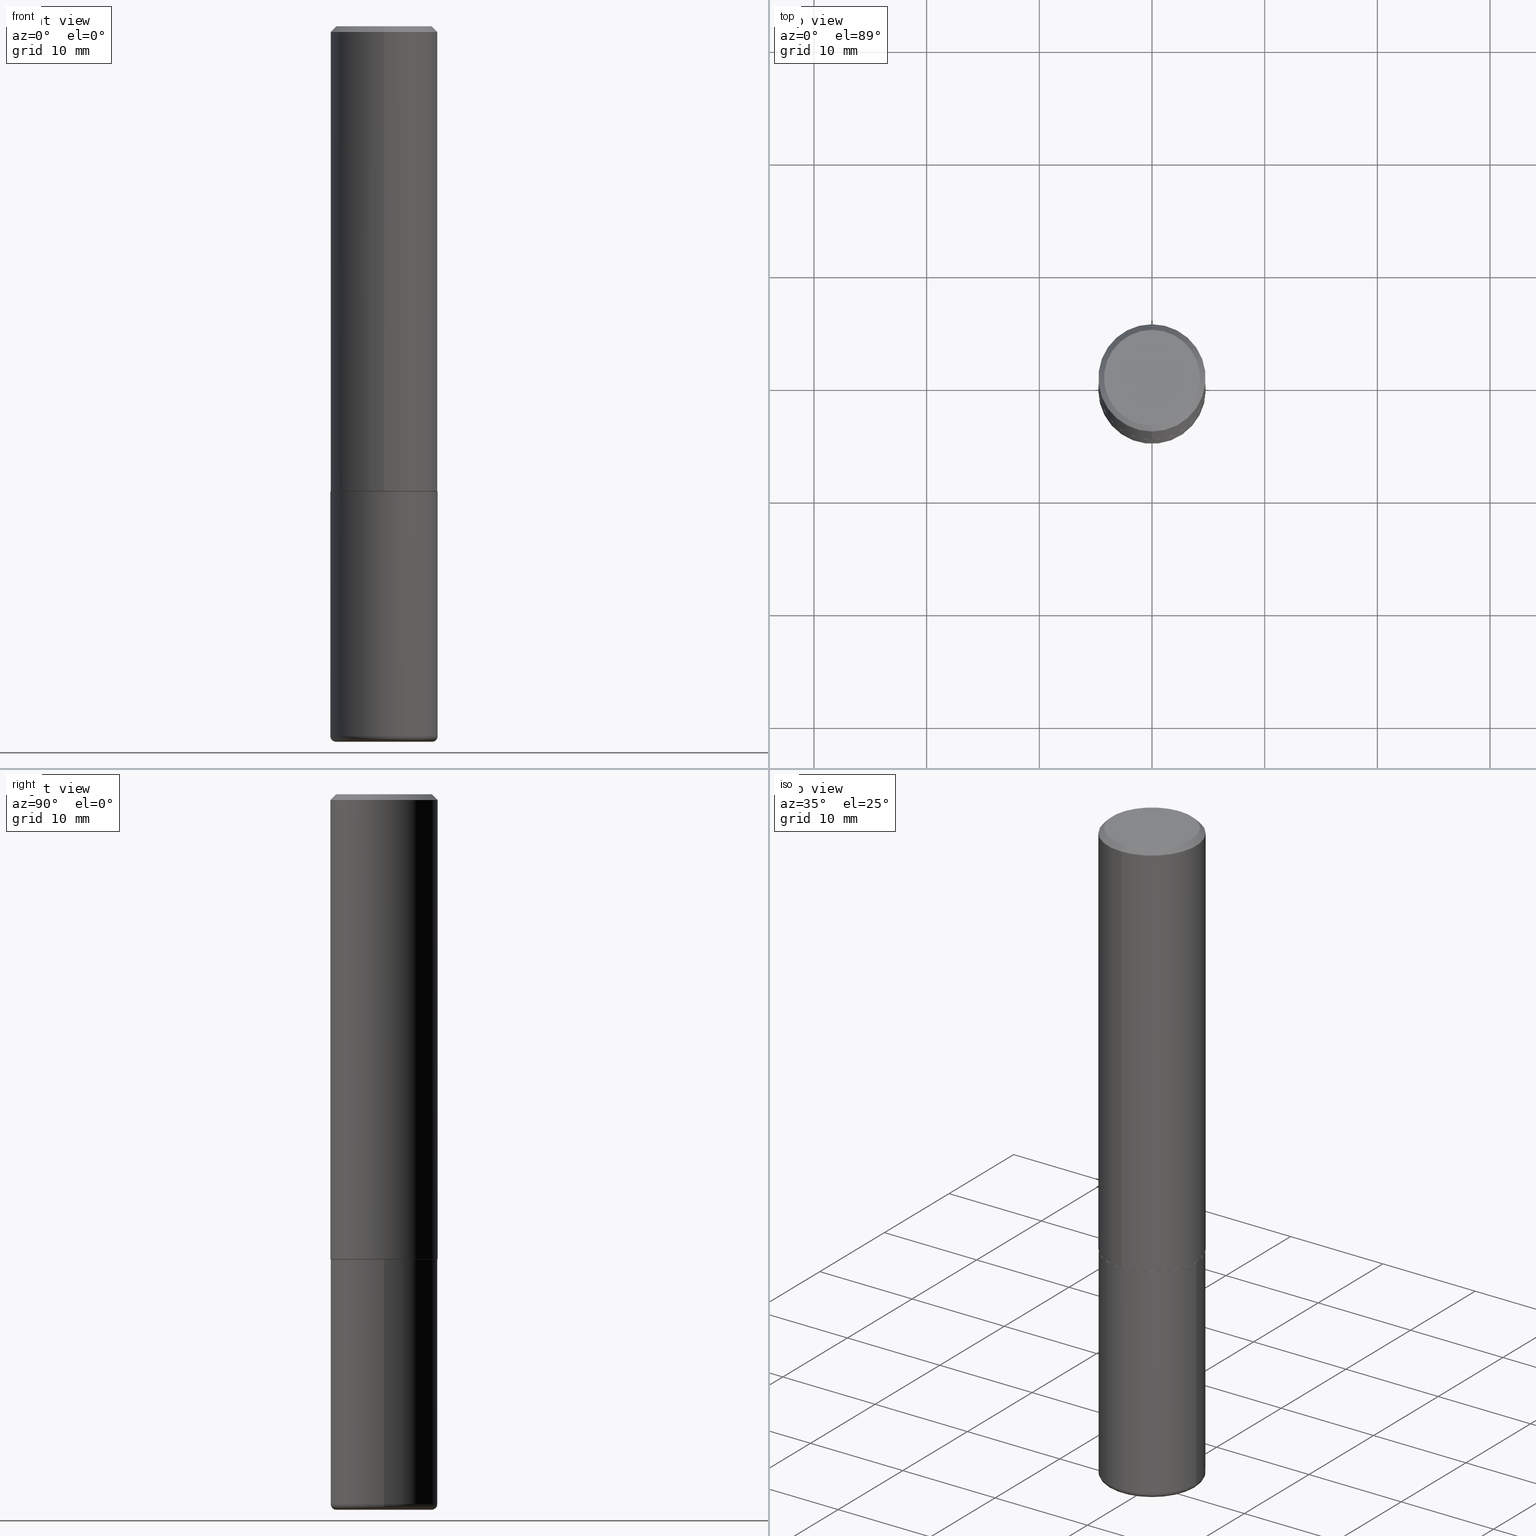
[diagram: canonical four-view strip — front | top / right | iso, engineering-drawing reading convention]
A machine part, canonical four-view strip (front | top / right | iso — engineering-drawing reading convention). The complete STEP part file that produces these views, byte-faithful:
ISO-10303-21;
HEADER;
FILE_DESCRIPTION (( 'STEP AP203' ),
    '1' );
FILE_NAME ('36572.STEP',
    '2024-03-01T16:43:53',
    ( '' ),
    ( '' ),
    'SwSTEP 2.0',
    'SolidWorks 2023',
    '' );
FILE_SCHEMA (( 'CONFIG_CONTROL_DESIGN' ));
ENDSEC;

DATA;
#1 = DIRECTION ( 'NONE',  ( 1.000000000000000000, -6.982962677686265922E-15, 4.876176775795935793E-29 ) ) ;
#2 = PERSON_AND_ORGANIZATION_ROLE ( 'creator' ) ;
#3 = CIRCLE ( 'NONE', #399, 0.01999999999999988939 ) ;
#4 = DIRECTION ( 'NONE',  ( 2.445330564750870114E-29, -3.491679308445229010E-15, -1.000000000000000000 ) ) ;
#5 = CALENDAR_DATE ( 2024, 1, 3 ) ;
#6 = CARTESIAN_POINT ( 'NONE',  ( 3.973886810050848091E-29, -5.673657175620113002E-15, -1.625000000000000222 ) ) ;
#7 = CARTESIAN_POINT ( 'NONE',  ( -0.1874999999999999722, -7.326606090780813796E-15, -2.480000000000000426 ) ) ;
#8 = DIRECTION ( 'NONE',  ( 7.105427357601001859E-15, 1.000000000000000000, -3.491481338843145583E-15 ) ) ;
#9 = ADVANCED_BREP_SHAPE_REPRESENTATION ( '36572', ( #342, #336, #187 ), #157 ) ;
#10 = CIRCLE ( 'NONE', #252, 0.1675000000000002320 ) ;
#11 = CARTESIAN_POINT ( 'NONE',  ( 3.973662167720164111E-29, -5.673978876223497387E-15, -1.625000000000000000 ) ) ;
#12 = DIRECTION ( 'NONE',  ( -2.445330564750870114E-29, 3.491679308445229010E-15, 1.000000000000000000 ) ) ;
#13 = CARTESIAN_POINT ( 'NONE',  ( 3.973662167720164111E-29, -5.673978876223497387E-15, -1.625000000000000000 ) ) ;
#14 = APPROVAL_PERSON_ORGANIZATION ( #201, #202, #291 ) ;
#15 = CARTESIAN_POINT ( 'NONE',  ( 6.113672015462842613E-29, -8.728703347107864943E-15, -2.500000000000000000 ) ) ;
#16 = CARTESIAN_POINT ( 'NONE',  ( -0.1675000000000000100, -7.432575177745255527E-15, -2.500000000000000000 ) ) ;
#17 = ORIENTED_EDGE ( 'NONE', *, *, #253, .F. ) ;
#18 = CIRCLE ( 'NONE', #207, 0.1875000000000000278 ) ;
#19 = FACE_OUTER_BOUND ( 'NONE', #254, .T. ) ;
#20 = ORIENTED_EDGE ( 'NONE', *, *, #361, .T. ) ;
#21 = EDGE_LOOP ( 'NONE', ( #20, #407 ) ) ;
#22 = DIRECTION ( 'NONE',  ( -2.445330564750870114E-29, 3.491679308445229010E-15, 1.000000000000000000 ) ) ;
#23 = ORIENTED_EDGE ( 'NONE', *, *, #68, .T. ) ;
#24 = PERSON_AND_ORGANIZATION ( #58, #381 ) ;
#25 = VECTOR ( 'NONE', #71, 39.37007874015748143 ) ;
#26 = EDGE_CURVE ( 'NONE', #363, #231, #98, .T. ) ;
#27 = AXIS2_PLACEMENT_3D ( 'NONE', #120, #118, #379 ) ;
#28 = EDGE_LOOP ( 'NONE', ( #134, #382, #155, #284 ) ) ;
#29 = PERSON_AND_ORGANIZATION_ROLE ( 'creator' ) ;
#30 = FACE_OUTER_BOUND ( 'NONE', #311, .T. ) ;
#31 = PERSON_AND_ORGANIZATION ( #58, #381 ) ;
#32 = DIRECTION ( 'NONE',  ( -4.851104656540957964E-15, -0.7071067811865491270, -0.7071067811865459074 ) ) ;
#33 = ADVANCED_FACE ( 'NONE', ( #264 ), #154, .T. ) ;
#34 = DIRECTION ( 'NONE',  ( -6.982962677686266711E-15, -1.000000000000000000, 3.483106191921935949E-15 ) ) ;
#35 = CC_DESIGN_APPROVAL ( #340, ( #107 ) ) ;
#36 = DIRECTION ( 'NONE',  ( 2.438088387897960049E-29, -3.491481338843145188E-15, -1.000000000000000000 ) ) ;
#37 = CARTESIAN_POINT ( 'NONE',  ( -0.1875000000000000278, 1.332267629550188046E-15, -9.223003294227947991E-30 ) ) ;
#38 = EDGE_CURVE ( 'NONE', #280, #49, #269, .T. ) ;
#39 = CARTESIAN_POINT ( 'NONE',  ( 6.064762639339139522E-29, -8.658873720331001644E-15, -2.480000000000000426 ) ) ;
#40 = CLOSED_SHELL ( 'NONE', ( #377, #176, #146, #60, #33, #328 ) ) ;
#41 = AXIS2_PLACEMENT_3D ( 'NONE', #15, #44, #305 ) ;
#42 = PLANE ( 'NONE',  #125 ) ;
#43 = DIRECTION ( 'NONE',  ( 2.445330564750869834E-29, -3.491679308445229010E-15, -1.000000000000000000 ) ) ;
#44 = DIRECTION ( 'NONE',  ( -2.445468806185136597E-29, 3.491481338843145583E-15, 1.000000000000000000 ) ) ;
#45 = CONICAL_SURFACE ( 'NONE', #173, 0.1864999999999999714, 0.7853981633976704346 ) ;
#46 = APPROVAL_PERSON_ORGANIZATION ( #75, #216, #296 ) ;
#47 = DIRECTION ( 'NONE',  ( 6.982962677686266711E-15, 1.000000000000000000, -3.483106191921935949E-15 ) ) ;
#48 = EDGE_CURVE ( 'NONE', #49, #363, #357, .T. ) ;
#49 = VERTEX_POINT ( 'NONE', #7 ) ;
#50 = PRODUCT_DEFINITION_SHAPE ( 'NONE', 'NONE',  #282 ) ;
#51 = DIRECTION ( 'NONE',  ( 4.937700262164541731E-15, 0.7071067811865442421, -0.7071067811865507924 ) ) ;
#52 = ORIENTED_EDGE ( 'NONE', *, *, #132, .T. ) ;
#53 = AXIS2_PLACEMENT_3D ( 'NONE', #205, #102, #34 ) ;
#54 = LOCAL_TIME ( 11, 43, 53.00000000000000000, #103 ) ;
#55 = CARTESIAN_POINT ( 'NONE',  ( 1.309305502066175205E-15, 0.1874999999999999167, -0.02000000000000069431 ) ) ;
#56 = ORIENTED_EDGE ( 'NONE', *, *, #132, .F. ) ;
#57 = LINE ( 'NONE', #287, #65 ) ;
#58 = PERSON ( 'UNSPECIFIED', 'UNSPECIFIED', 'UNSPECIFIED', ('UNSPECIFIED'), ('UNSPECIFIED'), ('UNSPECIFIED') ) ;
#59 = VERTEX_POINT ( 'NONE', #104 ) ;
#60 = ADVANCED_FACE ( 'NONE', ( #209 ), #100, .T. ) ;
#61 = CARTESIAN_POINT ( 'NONE',  ( -1.309305502066136748E-15, -0.1875000000000058842, -1.623999999999999666 ) ) ;
#62 = ORIENTED_EDGE ( 'NONE', *, *, #347, .T. ) ;
#63 = APPLICATION_CONTEXT ( 'configuration controlled 3d designs of mechanical parts and assemblies' ) ;
#64 = CC_DESIGN_PERSON_AND_ORGANIZATION_ASSIGNMENT ( #96, #138, ( #107 ) ) ;
#65 = VECTOR ( 'NONE', #153, 39.37007874015748854 ) ;
#66 = VERTEX_POINT ( 'NONE', #385 ) ;
#67 = APPLICATION_PROTOCOL_DEFINITION ( 'international standard', 'config_control_design', 1994, #63 ) ;
#68 = EDGE_CURVE ( 'NONE', #410, #175, #389, .T. ) ;
#69 = CARTESIAN_POINT ( 'NONE',  ( -0.1675000000000000100, -7.468714637932833959E-15, -2.480000000000000426 ) ) ;
#70 = COORDINATED_UNIVERSAL_TIME_OFFSET ( 5, 0, .BEHIND. ) ;
#71 = DIRECTION ( 'NONE',  ( -2.445468806185136877E-29, 3.491481338843145188E-15, 1.000000000000000000 ) ) ;
#72 = DATE_AND_TIME ( #210, #54 ) ;
#73 = AXIS2_PLACEMENT_3D ( 'NONE', #140, #239, #1 ) ;
#74 = FACE_OUTER_BOUND ( 'NONE', #341, .T. ) ;
#75 = PERSON_AND_ORGANIZATION ( #58, #381 ) ;
#76 = VERTEX_POINT ( 'NONE', #329 ) ;
#77 = ADVANCED_FACE ( 'NONE', ( #74 ), #84, .T. ) ;
#78 = CARTESIAN_POINT ( 'NONE',  ( -1.302322539388448565E-15, -0.1865000000000056335, -1.624999999999999556 ) ) ;
#79 = DIRECTION ( 'NONE',  ( 1.000000000000000000, -6.982962677686274599E-15, 0.000000000000000000 ) ) ;
#80 = CIRCLE ( 'NONE', #186, 0.1875000000000002220 ) ;
#81 = CARTESIAN_POINT ( 'NONE',  ( 0.1875000000000000278, -6.982962677686288010E-15, -1.625000000000000222 ) ) ;
#82 = CARTESIAN_POINT ( 'NONE',  ( 4.890661129501750808E-31, -6.983358616890472958E-17, -0.02000000000000004205 ) ) ;
#83 = DIRECTION ( 'NONE',  ( -6.982962677686265922E-15, -1.000000000000000000, 2.929595703661408850E-15 ) ) ;
#84 = CONICAL_SURFACE ( 'NONE', #165, 0.1874999999999999722, 0.7853981633974471688 ) ;
#85 = CARTESIAN_POINT ( 'NONE',  ( -1.217738394604447231E-15, -0.1675000000000002320, 3.458527446273026042E-16 ) ) ;
#86 = ORIENTED_EDGE ( 'NONE', *, *, #171, .T. ) ;
#87 = EDGE_CURVE ( 'NONE', #59, #231, #203, .T. ) ;
#88 = MECHANICAL_CONTEXT ( 'NONE', #316, 'mechanical' ) ;
#89 = ORIENTED_EDGE ( 'NONE', *, *, #361, .F. ) ;
#90 = LENGTH_MEASURE_WITH_UNIT ( LENGTH_MEASURE( 0.02539999999999999897 ), #224 );
#91 = ORIENTED_EDGE ( 'NONE', *, *, #99, .F. ) ;
#92 =( CONVERSION_BASED_UNIT ( 'INCH', #90 ) LENGTH_UNIT ( ) NAMED_UNIT ( #214 ) );
#93 = ORIENTED_EDGE ( 'NONE', *, *, #418, .F. ) ;
#94 = ORIENTED_EDGE ( 'NONE', *, *, #152, .T. ) ;
#95 = CC_DESIGN_PERSON_AND_ORGANIZATION_ASSIGNMENT ( #169, #130, ( #117 ) ) ;
#96 = PERSON_AND_ORGANIZATION ( #58, #381 ) ;
#97 = DIRECTION ( 'NONE',  ( -6.982962677686265922E-15, -1.000000000000000000, 2.913971193241877216E-15 ) ) ;
#98 = CIRCLE ( 'NONE', #331, 0.1875000000000000278 ) ;
#99 = EDGE_CURVE ( 'NONE', #378, #76, #80, .T. ) ;
#100 = CYLINDRICAL_SURFACE ( 'NONE', #73, 0.1875000000000000278 ) ;
#101 = CALENDAR_DATE ( 2024, 1, 3 ) ;
#102 = DIRECTION ( 'NONE',  ( -2.445330564750870114E-29, 3.491679308445229010E-15, 1.000000000000000000 ) ) ;
#103 = COORDINATED_UNIVERSAL_TIME_OFFSET ( 5, 0, .BEHIND. ) ;
#104 = CARTESIAN_POINT ( 'NONE',  ( 0.1874999999999999722, -9.968179222397176653E-15, -2.480000000000000426 ) ) ;
#105 = AXIS2_PLACEMENT_3D ( 'NONE', #250, #150, #185 ) ;
#106 = CARTESIAN_POINT ( 'NONE',  ( 3.971216837155413830E-29, -5.670487196915053013E-15, -1.624000000000000110 ) ) ;
#107 = SECURITY_CLASSIFICATION ( '', '', #392 ) ;
#108 = EDGE_CURVE ( 'NONE', #76, #378, #380, .T. ) ;
#109 = PLANE ( 'NONE',  #116 ) ;
#110 = CARTESIAN_POINT ( 'NONE',  ( -1.309305502066175797E-15, -0.1875000000000001110, 6.546898703334808091E-16 ) ) ;
#111 = DIRECTION ( 'NONE',  ( -6.982962677686266711E-15, -1.000000000000000000, 3.491679308445229010E-15 ) ) ;
#112 = CONICAL_SURFACE ( 'NONE', #344, 0.1874999999999999722, 0.7853981633974471688 ) ;
#113 = DIRECTION ( 'NONE',  ( -2.445330564750870114E-29, 3.491679308445229010E-15, 1.000000000000000000 ) ) ;
#114 = DIRECTION ( 'NONE',  ( -2.445330564750870114E-29, 3.491679308445229010E-15, 1.000000000000000000 ) ) ;
#115 = APPLICATION_PROTOCOL_DEFINITION ( 'international standard', 'config_control_design', 1994, #316 ) ;
#116 = AXIS2_PLACEMENT_3D ( 'NONE', #337, #398, #213 ) ;
#117 = PRODUCT ( '36572', '36572', '', ( #88 ) ) ;
#118 = DIRECTION ( 'NONE',  ( -2.445330564750870114E-29, 3.491679308445229010E-15, 1.000000000000000000 ) ) ;
#119 = ORIENTED_EDGE ( 'NONE', *, *, #249, .T. ) ;
#120 = CARTESIAN_POINT ( 'NONE',  ( 5.844426603141393013E-45, -8.345237136474710715E-31, -2.390035395372740546E-16 ) ) ;
#121 = VERTEX_POINT ( 'NONE', #200 ) ;
#122 = UNCERTAINTY_MEASURE_WITH_UNIT (LENGTH_MEASURE( 1.000000000000000082E-05 ), #92, 'distance_accuracy_value', 'NONE');
#123 = DIRECTION ( 'NONE',  ( -6.982962677686265133E-15, -1.000000000000000000, 3.491679308445229010E-15 ) ) ;
#124 = ORIENTED_EDGE ( 'NONE', *, *, #260, .T. ) ;
#125 = AXIS2_PLACEMENT_3D ( 'NONE', #376, #403, #197 ) ;
#126 = CC_DESIGN_APPROVAL ( #216, ( #181 ) ) ;
#127 = CARTESIAN_POINT ( 'NONE',  ( 3.973662167720164111E-29, -5.673978876223497387E-15, -1.625000000000000000 ) ) ;
#128 = CC_DESIGN_PERSON_AND_ORGANIZATION_ASSIGNMENT ( #238, #2, ( #282 ) ) ;
#129 = VERTEX_POINT ( 'NONE', #211 ) ;
#130 = PERSON_AND_ORGANIZATION_ROLE ( 'design_owner' ) ;
#131 = EDGE_LOOP ( 'NONE', ( #261, #94, #124, #198 ) ) ;
#132 = EDGE_CURVE ( 'NONE', #175, #121, #156, .T. ) ;
#133 = CALENDAR_DATE ( 2024, 1, 3 ) ;
#134 = ORIENTED_EDGE ( 'NONE', *, *, #48, .F. ) ;
#135 = AXIS2_PLACEMENT_3D ( 'NONE', #82, #180, #219 ) ;
#136 = LOCAL_TIME ( 11, 43, 53.00000000000000000, #416 ) ;
#137 = DIRECTION ( 'NONE',  ( 1.000000000000000000, -6.982962677686266711E-15, 0.000000000000000000 ) ) ;
#138 = PERSON_AND_ORGANIZATION_ROLE ( 'classification_officer' ) ;
#139 = VERTEX_POINT ( 'NONE', #324 ) ;
#140 = CARTESIAN_POINT ( 'NONE',  ( 0.000000000000000000, 0.000000000000000000, 0.000000000000000000 ) ) ;
#141 = CIRCLE ( 'NONE', #135, 0.1874999999999999722 ) ;
#142 = CARTESIAN_POINT ( 'NONE',  ( 4.890661129501750808E-31, -6.983358616890472958E-17, -0.02000000000000004205 ) ) ;
#143 = VECTOR ( 'NONE', #151, 39.37007874015748143 ) ;
#144 = CC_DESIGN_DATE_AND_TIME_ASSIGNMENT ( #362, #325, ( #282 ) ) ;
#145 = DIRECTION ( 'NONE',  ( -2.445468806185136597E-29, 3.491481338843145583E-15, 1.000000000000000000 ) ) ;
#146 = ADVANCED_FACE ( 'NONE', ( #30 ), #262, .F. ) ;
#147 = DIRECTION ( 'NONE',  ( -2.445330564750870114E-29, 3.491679308445229010E-15, 1.000000000000000000 ) ) ;
#148 = CARTESIAN_POINT ( 'NONE',  ( 1.169646248512450976E-15, 0.1675000000000002320, -7.043580539332136615E-16 ) ) ;
#149 = CIRCLE ( 'NONE', #222, 0.1675000000000000100 ) ;
#150 = DIRECTION ( 'NONE',  ( -2.445468806185136597E-29, 3.491481338843145583E-15, 1.000000000000000000 ) ) ;
#151 = DIRECTION ( 'NONE',  ( -2.445330564750870114E-29, 3.491679308445229010E-15, 1.000000000000000000 ) ) ;
#152 = EDGE_CURVE ( 'NONE', #280, #139, #240, .T. ) ;
#153 = DIRECTION ( 'NONE',  ( 5.024295867789177050E-15, 0.7071067811867068897, 0.7071067811863879227 ) ) ;
#154 = TOROIDAL_SURFACE ( 'NONE', #367, 0.1675000000000000100, 0.01999999999999988939 ) ;
#155 = ORIENTED_EDGE ( 'NONE', *, *, #87, .T. ) ;
#156 = CIRCLE ( 'NONE', #53, 0.1874999999999999722 ) ;
#157 =( GEOMETRIC_REPRESENTATION_CONTEXT ( 3 ) GLOBAL_UNCERTAINTY_ASSIGNED_CONTEXT ( ( #122 ) ) GLOBAL_UNIT_ASSIGNED_CONTEXT ( ( #92, #411, #193 ) ) REPRESENTATION_CONTEXT ( 'NONE', 'WORKASPACE' ) );
#158 = CARTESIAN_POINT ( 'NONE',  ( 6.064762639339139522E-29, -8.658873720331001644E-15, -2.480000000000000426 ) ) ;
#159 = ORIENTED_EDGE ( 'NONE', *, *, #295, .F. ) ;
#160 = ADVANCED_FACE ( 'NONE', ( #364 ), #112, .T. ) ;
#161 = DIRECTION ( 'NONE',  ( -2.445330564750870114E-29, 3.491679308445229010E-15, 1.000000000000000000 ) ) ;
#162 = ORIENTED_EDGE ( 'NONE', *, *, #87, .F. ) ;
#163 = CARTESIAN_POINT ( 'NONE',  ( 1.332267629550188440E-15, 0.1875000000000001110, -6.546898703334808091E-16 ) ) ;
#164 = EDGE_LOOP ( 'NONE', ( #267, #383, #56, #159 ) ) ;
#165 = AXIS2_PLACEMENT_3D ( 'NONE', #142, #4, #233 ) ;
#166 = AXIS2_PLACEMENT_3D ( 'NONE', #127, #22, #319 ) ;
#167 = APPROVAL_STATUS ( 'not_yet_approved' ) ;
#168 = EDGE_LOOP ( 'NONE', ( #289, #315, #119, #196 ) ) ;
#169 = PERSON_AND_ORGANIZATION ( #58, #381 ) ;
#170 = EDGE_LOOP ( 'NONE', ( #415, #89, #256, #387 ) ) ;
#171 = EDGE_CURVE ( 'NONE', #231, #363, #18, .T. ) ;
#172 = CARTESIAN_POINT ( 'NONE',  ( 3.971216837155413830E-29, -5.670487196915053013E-15, -1.624000000000000110 ) ) ;
#173 = AXIS2_PLACEMENT_3D ( 'NONE', #221, #113, #310 ) ;
#174 = APPROVAL_PERSON_ORGANIZATION ( #232, #340, #204 ) ;
#175 = VERTEX_POINT ( 'NONE', #397 ) ;
#176 = ADVANCED_FACE ( 'NONE', ( #183 ), #360, .T. ) ;
#177 = DIRECTION ( 'NONE',  ( -1.000000000000000000, 6.982962677686265922E-15, -4.876176775795935793E-29 ) ) ;
#178 = ORIENTED_EDGE ( 'NONE', *, *, #402, .F. ) ;
#179 = AXIS2_PLACEMENT_3D ( 'NONE', #148, #43, #369 ) ;
#180 = DIRECTION ( 'NONE',  ( -2.445330564750870114E-29, 3.491679308445229010E-15, 1.000000000000000000 ) ) ;
#181 = PRODUCT_DEFINITION_FORMATION_WITH_SPECIFIED_SOURCE ( 'ANY', '', #117, .NOT_KNOWN. ) ;
#182 = EDGE_CURVE ( 'NONE', #191, #66, #258, .T. ) ;
#183 = FACE_OUTER_BOUND ( 'NONE', #417, .T. ) ;
#184 = FACE_OUTER_BOUND ( 'NONE', #21, .T. ) ;
#185 = DIRECTION ( 'NONE',  ( 1.000000000000000000, -6.982962677686265922E-15, 4.883557194083112901E-29 ) ) ;
#186 = AXIS2_PLACEMENT_3D ( 'NONE', #172, #297, #393 ) ;
#187 = AXIS2_PLACEMENT_3D ( 'NONE', #278, #406, #374 ) ;
#188 = ADVANCED_FACE ( 'NONE', ( #184 ), #218, .F. ) ;
#189 = CYLINDRICAL_SURFACE ( 'NONE', #405, 0.1875000000000001110 ) ;
#190 = ORIENTED_EDGE ( 'NONE', *, *, #108, .T. ) ;
#191 = VERTEX_POINT ( 'NONE', #370 ) ;
#192 = CIRCLE ( 'NONE', #290, 0.1864999999999999714 ) ;
#193 =( NAMED_UNIT ( * ) SI_UNIT ( $, .STERADIAN. ) SOLID_ANGLE_UNIT ( ) );
#194 = ORIENTED_EDGE ( 'NONE', *, *, #260, .F. ) ;
#195 = FACE_OUTER_BOUND ( 'NONE', #257, .T. ) ;
#196 = ORIENTED_EDGE ( 'NONE', *, *, #108, .F. ) ;
#197 = DIRECTION ( 'NONE',  ( -1.000000000000000000, 6.982962677686265922E-15, -4.876176775795935793E-29 ) ) ;
#198 = ORIENTED_EDGE ( 'NONE', *, *, #288, .F. ) ;
#199 = AXIS2_PLACEMENT_3D ( 'NONE', #158, #322, #229 ) ;
#200 = CARTESIAN_POINT ( 'NONE',  ( 1.309305502066175205E-15, 0.1874999999999999167, -0.02000000000000069431 ) ) ;
#201 = PERSON_AND_ORGANIZATION ( #58, #381 ) ;
#202 = APPROVAL ( #167, 'UNSPECIFIED' ) ;
#203 = LINE ( 'NONE', #327, #275 ) ;
#204 = APPROVAL_ROLE ( '' ) ;
#205 = CARTESIAN_POINT ( 'NONE',  ( 4.890661129501750808E-31, -6.983358616890472958E-17, -0.02000000000000004205 ) ) ;
#206 = ADVANCED_FACE ( 'NONE', ( #333 ), #45, .T. ) ;
#207 = AXIS2_PLACEMENT_3D ( 'NONE', #334, #271, #309 ) ;
#208 = LOCAL_TIME ( 11, 43, 53.00000000000000000, #390 ) ;
#209 = FACE_OUTER_BOUND ( 'NONE', #28, .T. ) ;
#210 = CALENDAR_DATE ( 2024, 1, 3 ) ;
#211 = CARTESIAN_POINT ( 'NONE',  ( 1.239475875289313091E-15, 0.1675000000000002320, -8.238598237018507628E-16 ) ) ;
#212 = ADVANCED_FACE ( 'NONE', ( #247 ), #307, .T. ) ;
#213 = DIRECTION ( 'NONE',  ( -6.982962677686265922E-15, -1.000000000000000000, 3.491679308445229010E-15 ) ) ;
#214 = DIMENSIONAL_EXPONENTS ( 1.000000000000000000, 0.000000000000000000, 0.000000000000000000, 0.000000000000000000, 0.000000000000000000, 0.000000000000000000, 0.000000000000000000 ) ;
#215 = AXIS2_PLACEMENT_3D ( 'NONE', #69, #8, #301 ) ;
#216 = APPROVAL ( #388, 'UNSPECIFIED' ) ;
#217 = DIRECTION ( 'NONE',  ( -2.445468806185136597E-29, 3.491481338843145583E-15, 1.000000000000000000 ) ) ;
#218 = PLANE ( 'NONE',  #179 ) ;
#219 = DIRECTION ( 'NONE',  ( -6.982962677686266711E-15, -1.000000000000000000, 3.483106191921935949E-15 ) ) ;
#220 = EDGE_CURVE ( 'NONE', #66, #191, #192, .T. ) ;
#221 = CARTESIAN_POINT ( 'NONE',  ( 3.973662167720164111E-29, -5.673978876223497387E-15, -1.625000000000000000 ) ) ;
#222 = AXIS2_PLACEMENT_3D ( 'NONE', #243, #217, #244 ) ;
#223 = ORIENTED_EDGE ( 'NONE', *, *, #152, .F. ) ;
#224 =( LENGTH_UNIT ( ) NAMED_UNIT ( * ) SI_UNIT ( $, .METRE. ) );
#225 = ORIENTED_EDGE ( 'NONE', *, *, #338, .F. ) ;
#226 = ORIENTED_EDGE ( 'NONE', *, *, #306, .T. ) ;
#227 = CIRCLE ( 'NONE', #395, 0.1875000000000000278 ) ;
#228 = LOCAL_TIME ( 11, 43, 53.00000000000000000, #265 ) ;
#229 = DIRECTION ( 'NONE',  ( 1.000000000000000000, -6.982962677686261189E-15, 0.000000000000000000 ) ) ;
#230 = ORIENTED_EDGE ( 'NONE', *, *, #171, .F. ) ;
#231 = VERTEX_POINT ( 'NONE', #81 ) ;
#232 = PERSON_AND_ORGANIZATION ( #58, #381 ) ;
#233 = DIRECTION ( 'NONE',  ( 6.982962677686266711E-15, 1.000000000000000000, -3.483106191921935949E-15 ) ) ;
#234 = AXIS2_PLACEMENT_3D ( 'NONE', #366, #147, #111 ) ;
#235 = EDGE_LOOP ( 'NONE', ( #93, #190, #259, #17 ) ) ;
#236 = DATE_AND_TIME ( #5, #228 ) ;
#237 = ORIENTED_EDGE ( 'NONE', *, *, #365, .T. ) ;
#238 = PERSON_AND_ORGANIZATION ( #58, #381 ) ;
#239 = DIRECTION ( 'NONE',  ( -2.445468806185136597E-29, 3.491481338843145583E-15, 1.000000000000000000 ) ) ;
#240 = CIRCLE ( 'NONE', #41, 0.1675000000000000100 ) ;
#241 = DATE_AND_TIME ( #101, #208 ) ;
#242 = DIRECTION ( 'NONE',  ( -2.445330564750870114E-29, 3.491679308445229010E-15, 1.000000000000000000 ) ) ;
#243 = CARTESIAN_POINT ( 'NONE',  ( 6.113672015462842613E-29, -8.728703347107864943E-15, -2.500000000000000000 ) ) ;
#244 = DIRECTION ( 'NONE',  ( 1.000000000000000000, -6.982962677686271444E-15, 0.000000000000000000 ) ) ;
#245 = VECTOR ( 'NONE', #32, 39.37007874015748143 ) ;
#246 = CC_DESIGN_SECURITY_CLASSIFICATION ( #107, ( #181 ) ) ;
#247 = FACE_OUTER_BOUND ( 'NONE', #164, .T. ) ;
#248 = DIRECTION ( 'NONE',  ( -4.937700262165644559E-15, -0.7071067811867021158, 0.7071067811863929187 ) ) ;
#249 = EDGE_CURVE ( 'NONE', #191, #378, #400, .T. ) ;
#250 = CARTESIAN_POINT ( 'NONE',  ( 6.064762639339139522E-29, -8.658873720331001644E-15, -2.480000000000000426 ) ) ;
#251 = DIRECTION ( 'NONE',  ( -2.445468806185136597E-29, 3.491481338843145583E-15, 1.000000000000000000 ) ) ;
#252 = AXIS2_PLACEMENT_3D ( 'NONE', #317, #339, #123 ) ;
#253 = EDGE_CURVE ( 'NONE', #121, #175, #141, .T. ) ;
#254 = EDGE_LOOP ( 'NONE', ( #62, #266, #230, #162 ) ) ;
#255 = LINE ( 'NONE', #163, #143 ) ;
#256 = ORIENTED_EDGE ( 'NONE', *, *, #338, .T. ) ;
#257 = EDGE_LOOP ( 'NONE', ( #292, #237, #91, #353 ) ) ;
#258 = CIRCLE ( 'NONE', #279, 0.1864999999999999714 ) ;
#259 = ORIENTED_EDGE ( 'NONE', *, *, #295, .T. ) ;
#260 = EDGE_CURVE ( 'NONE', #139, #59, #3, .T. ) ;
#261 = ORIENTED_EDGE ( 'NONE', *, *, #38, .F. ) ;
#262 = PLANE ( 'NONE',  #298 ) ;
#263 = APPROVAL_DATE_TIME ( #72, #216 ) ;
#264 = FACE_OUTER_BOUND ( 'NONE', #131, .T. ) ;
#265 = COORDINATED_UNIVERSAL_TIME_OFFSET ( 5, 0, .BEHIND. ) ;
#266 = ORIENTED_EDGE ( 'NONE', *, *, #48, .T. ) ;
#267 = ORIENTED_EDGE ( 'NONE', *, *, #99, .T. ) ;
#268 = DESIGN_CONTEXT ( 'detailed design', #63, 'design' ) ;
#269 = CIRCLE ( 'NONE', #215, 0.01999999999999988939 ) ;
#270 = DIRECTION ( 'NONE',  ( 1.000000000000000000, -6.982962677686261189E-15, 0.000000000000000000 ) ) ;
#271 = DIRECTION ( 'NONE',  ( -2.445468806185136597E-29, 3.491481338843145583E-15, 1.000000000000000000 ) ) ;
#272 = PRODUCT_RELATED_PRODUCT_CATEGORY ( 'detail', '', ( #117 ) ) ;
#273 = DIRECTION ( 'NONE',  ( -6.982962677686266711E-15, -1.000000000000000000, 3.491481338843145583E-15 ) ) ;
#274 = CLOSED_SHELL ( 'NONE', ( #408, #212, #77, #160, #371, #206, #302, #188 ) ) ;
#275 = VECTOR ( 'NONE', #326, 39.37007874015748143 ) ;
#276 = DIRECTION ( 'NONE',  ( -6.982962677686265922E-15, -1.000000000000000000, 2.929595703661408850E-15 ) ) ;
#277 = LINE ( 'NONE', #110, #413 ) ;
#278 = CARTESIAN_POINT ( 'NONE',  ( 0.000000000000000000, 0.000000000000000000, 0.000000000000000000 ) ) ;
#279 = AXIS2_PLACEMENT_3D ( 'NONE', #13, #368, #83 ) ;
#280 = VERTEX_POINT ( 'NONE', #16 ) ;
#281 = CC_DESIGN_APPROVAL ( #202, ( #282 ) ) ;
#282 = PRODUCT_DEFINITION ( 'UNKNOWN', '', #181, #268 ) ;
#283 = FACE_OUTER_BOUND ( 'NONE', #235, .T. ) ;
#284 = ORIENTED_EDGE ( 'NONE', *, *, #26, .F. ) ;
#285 = CYLINDRICAL_SURFACE ( 'NONE', #345, 0.1875000000000000278 ) ;
#286 = ORIENTED_EDGE ( 'NONE', *, *, #182, .F. ) ;
#287 = CARTESIAN_POINT ( 'NONE',  ( 1.325162202192626283E-15, 0.1864999999999943092, -1.625000000000000666 ) ) ;
#288 = EDGE_CURVE ( 'NONE', #49, #59, #227, .T. ) ;
#289 = ORIENTED_EDGE ( 'NONE', *, *, #365, .F. ) ;
#290 = AXIS2_PLACEMENT_3D ( 'NONE', #11, #12, #276 ) ;
#291 = APPROVAL_ROLE ( '' ) ;
#292 = ORIENTED_EDGE ( 'NONE', *, *, #182, .T. ) ;
#293 = SHAPE_DEFINITION_REPRESENTATION ( #50, #9 ) ;
#294 = CARTESIAN_POINT ( 'NONE',  ( 6.064762639339139522E-29, -8.658873720331001644E-15, -2.480000000000000426 ) ) ;
#295 = EDGE_CURVE ( 'NONE', #378, #175, #277, .T. ) ;
#296 = APPROVAL_ROLE ( '' ) ;
#297 = DIRECTION ( 'NONE',  ( -2.445330564750870114E-29, 3.491679308445229010E-15, 1.000000000000000000 ) ) ;
#298 = AXIS2_PLACEMENT_3D ( 'NONE', #6, #36, #177 ) ;
#299 = CARTESIAN_POINT ( 'NONE',  ( -1.286343374582161379E-15, -0.1875000000000000555, -0.01999999999999938979 ) ) ;
#300 = DATE_AND_TIME ( #384, #136 ) ;
#301 = DIRECTION ( 'NONE',  ( -1.000000000000000000, 7.105427357601014480E-15, 0.000000000000000000 ) ) ;
#302 = ADVANCED_FACE ( 'NONE', ( #396 ), #109, .F. ) ;
#303 = CARTESIAN_POINT ( 'NONE',  ( 3.973886810050848091E-29, -5.673657175620113002E-15, -1.625000000000000222 ) ) ;
#304 = DIRECTION ( 'NONE',  ( 2.445330564750870114E-29, -3.491679308445229010E-15, -1.000000000000000000 ) ) ;
#305 = DIRECTION ( 'NONE',  ( 1.000000000000000000, -6.982962677686271444E-15, 0.000000000000000000 ) ) ;
#306 = EDGE_CURVE ( 'NONE', #139, #280, #149, .T. ) ;
#307 = CYLINDRICAL_SURFACE ( 'NONE', #234, 0.1875000000000001110 ) ;
#308 = AXIS2_PLACEMENT_3D ( 'NONE', #106, #242, #97 ) ;
#309 = DIRECTION ( 'NONE',  ( 1.000000000000000000, -6.982962677686266711E-15, 0.000000000000000000 ) ) ;
#310 = DIRECTION ( 'NONE',  ( -6.982962677686265922E-15, -1.000000000000000000, 2.929595703661408850E-15 ) ) ;
#311 = EDGE_LOOP ( 'NONE', ( #86, #375 ) ) ;
#312 = DIRECTION ( 'NONE',  ( -6.982962677686266711E-15, -1.000000000000000000, 3.491679308445229010E-15 ) ) ;
#313 = VECTOR ( 'NONE', #248, 39.37007874015748143 ) ;
#314 = CIRCLE ( 'NONE', #27, 0.1675000000000002320 ) ;
#315 = ORIENTED_EDGE ( 'NONE', *, *, #220, .T. ) ;
#316 = APPLICATION_CONTEXT ( 'configuration controlled 3d designs of mechanical parts and assemblies' ) ;
#317 = CARTESIAN_POINT ( 'NONE',  ( 5.844426603141393013E-45, -8.345237136474710715E-31, -2.390035395372740546E-16 ) ) ;
#318 = ORIENTED_EDGE ( 'NONE', *, *, #220, .F. ) ;
#319 = DIRECTION ( 'NONE',  ( -6.982962677686265922E-15, -1.000000000000000000, 2.929595703661408850E-15 ) ) ;
#320 = ORIENTED_EDGE ( 'NONE', *, *, #38, .T. ) ;
#321 = CC_DESIGN_PERSON_AND_ORGANIZATION_ASSIGNMENT ( #24, #352, ( #181 ) ) ;
#322 = DIRECTION ( 'NONE',  ( -2.445468806185136597E-29, 3.491481338843145583E-15, 1.000000000000000000 ) ) ;
#323 = VECTOR ( 'NONE', #51, 39.37007874015748143 ) ;
#324 = CARTESIAN_POINT ( 'NONE',  ( 0.1675000000000000100, -9.898349595620314932E-15, -2.500000000000000000 ) ) ;
#325 = DATE_TIME_ROLE ( 'creation_date' ) ;
#326 = DIRECTION ( 'NONE',  ( -2.445468806185136877E-29, 3.491481338843145188E-15, 1.000000000000000000 ) ) ;
#327 = CARTESIAN_POINT ( 'NONE',  ( 0.1875000000000000278, -1.309305502066175008E-15, 9.142831454617381013E-30 ) ) ;
#328 = ADVANCED_FACE ( 'NONE', ( #330 ), #42, .T. ) ;
#329 = CARTESIAN_POINT ( 'NONE',  ( 1.332267629550208753E-15, 0.1874999999999945599, -1.624000000000000776 ) ) ;
#330 = FACE_OUTER_BOUND ( 'NONE', #351, .T. ) ;
#331 = AXIS2_PLACEMENT_3D ( 'NONE', #303, #391, #137 ) ;
#332 = LOCAL_TIME ( 11, 43, 53.00000000000000000, #70 ) ;
#333 = FACE_OUTER_BOUND ( 'NONE', #168, .T. ) ;
#334 = CARTESIAN_POINT ( 'NONE',  ( 3.973886810050848091E-29, -5.673657175620113002E-15, -1.625000000000000222 ) ) ;
#335 = CARTESIAN_POINT ( 'NONE',  ( 0.1675000000000000100, -9.828519968843451634E-15, -2.480000000000000426 ) ) ;
#336 = MANIFOLD_SOLID_BREP ( 'Body-Move/Copy2[2]', #274 ) ;
#337 = CARTESIAN_POINT ( 'NONE',  ( 3.973662167720164671E-29, -5.673978876223498176E-15, -1.625000000000000222 ) ) ;
#338 = EDGE_CURVE ( 'NONE', #129, #121, #343, .T. ) ;
#339 = DIRECTION ( 'NONE',  ( -2.445330564750870114E-29, 3.491679308445229010E-15, 1.000000000000000000 ) ) ;
#340 = APPROVAL ( #354, 'UNSPECIFIED' ) ;
#341 = EDGE_LOOP ( 'NONE', ( #178, #23, #52, #225 ) ) ;
#342 = MANIFOLD_SOLID_BREP ( 'Body-Move/Copy2[1]', #40 ) ;
#343 = LINE ( 'NONE', #55, #323 ) ;
#344 = AXIS2_PLACEMENT_3D ( 'NONE', #401, #304, #47 ) ;
#345 = AXIS2_PLACEMENT_3D ( 'NONE', #409, #251, #373 ) ;
#346 = EDGE_LOOP ( 'NONE', ( #286, #318 ) ) ;
#347 = EDGE_CURVE ( 'NONE', #59, #49, #372, .T. ) ;
#348 = CARTESIAN_POINT ( 'NONE',  ( -0.1875000000000000278, -5.833997818425370658E-15, -1.625000000000000222 ) ) ;
#349 = ORIENTED_EDGE ( 'NONE', *, *, #306, .F. ) ;
#350 = CARTESIAN_POINT ( 'NONE',  ( 0.000000000000000000, 0.000000000000000000, 0.000000000000000000 ) ) ;
#351 = EDGE_LOOP ( 'NONE', ( #349, #223 ) ) ;
#352 = PERSON_AND_ORGANIZATION_ROLE ( 'design_supplier' ) ;
#353 = ORIENTED_EDGE ( 'NONE', *, *, #249, .F. ) ;
#354 = APPROVAL_STATUS ( 'not_yet_approved' ) ;
#355 = DIRECTION ( 'NONE',  ( 1.000000000000000000, -6.982962677686265922E-15, 4.883557194083112901E-29 ) ) ;
#356 = APPROVAL_DATE_TIME ( #241, #202 ) ;
#357 = LINE ( 'NONE', #37, #25 ) ;
#358 = DATE_TIME_ROLE ( 'classification_date' ) ;
#359 = DIRECTION ( 'NONE',  ( -2.445468806185136597E-29, 3.491481338843145583E-15, 1.000000000000000000 ) ) ;
#360 = TOROIDAL_SURFACE ( 'NONE', #105, 0.1675000000000000100, 0.01999999999999988939 ) ;
#361 = EDGE_CURVE ( 'NONE', #129, #410, #10, .T. ) ;
#362 = DATE_AND_TIME ( #133, #332 ) ;
#363 = VERTEX_POINT ( 'NONE', #348 ) ;
#364 = FACE_OUTER_BOUND ( 'NONE', #170, .T. ) ;
#365 = EDGE_CURVE ( 'NONE', #66, #76, #57, .T. ) ;
#366 = CARTESIAN_POINT ( 'NONE',  ( 0.000000000000000000, 0.000000000000000000, 0.000000000000000000 ) ) ;
#367 = AXIS2_PLACEMENT_3D ( 'NONE', #294, #359, #355 ) ;
#368 = DIRECTION ( 'NONE',  ( -2.445330564750870114E-29, 3.491679308445229010E-15, 1.000000000000000000 ) ) ;
#369 = DIRECTION ( 'NONE',  ( 6.982962677686265922E-15, 1.000000000000000000, -3.491679308445229010E-15 ) ) ;
#370 = CARTESIAN_POINT ( 'NONE',  ( -1.302322539388448565E-15, -0.1865000000000056335, -1.624999999999999556 ) ) ;
#371 = ADVANCED_FACE ( 'NONE', ( #283 ), #189, .T. ) ;
#372 = CIRCLE ( 'NONE', #199, 0.1875000000000000278 ) ;
#373 = DIRECTION ( 'NONE',  ( 1.000000000000000000, -6.982962677686265922E-15, 4.876176775795935793E-29 ) ) ;
#374 = DIRECTION ( 'NONE',  ( 1.000000000000000000, 0.000000000000000000, 0.000000000000000000 ) ) ;
#375 = ORIENTED_EDGE ( 'NONE', *, *, #26, .T. ) ;
#376 = CARTESIAN_POINT ( 'NONE',  ( 6.113672015462842613E-29, -8.728703347107864943E-15, -2.500000000000000000 ) ) ;
#377 = ADVANCED_FACE ( 'NONE', ( #19 ), #285, .T. ) ;
#378 = VERTEX_POINT ( 'NONE', #61 ) ;
#379 = DIRECTION ( 'NONE',  ( -6.982962677686265133E-15, -1.000000000000000000, 3.491679308445229010E-15 ) ) ;
#380 = CIRCLE ( 'NONE', #308, 0.1875000000000002220 ) ;
#381 = ORGANIZATION ( 'UNSPECIFIED', 'UNSPECIFIED', '' ) ;
#382 = ORIENTED_EDGE ( 'NONE', *, *, #288, .T. ) ;
#383 = ORIENTED_EDGE ( 'NONE', *, *, #418, .T. ) ;
#384 = CALENDAR_DATE ( 2024, 1, 3 ) ;
#385 = CARTESIAN_POINT ( 'NONE',  ( 1.328714915871427774E-15, 0.1864999999999943092, -1.625000000000000666 ) ) ;
#386 = APPROVAL_DATE_TIME ( #300, #340 ) ;
#387 = ORIENTED_EDGE ( 'NONE', *, *, #253, .T. ) ;
#388 = APPROVAL_STATUS ( 'not_yet_approved' ) ;
#389 = LINE ( 'NONE', #299, #245 ) ;
#390 = COORDINATED_UNIVERSAL_TIME_OFFSET ( 5, 0, .BEHIND. ) ;
#391 = DIRECTION ( 'NONE',  ( -2.445468806185136597E-29, 3.491481338843145583E-15, 1.000000000000000000 ) ) ;
#392 = SECURITY_CLASSIFICATION_LEVEL ( 'unclassified' ) ;
#393 = DIRECTION ( 'NONE',  ( -6.982962677686265922E-15, -1.000000000000000000, 2.913971193241877216E-15 ) ) ;
#394 = CC_DESIGN_PERSON_AND_ORGANIZATION_ASSIGNMENT ( #31, #29, ( #181 ) ) ;
#395 = AXIS2_PLACEMENT_3D ( 'NONE', #39, #145, #270 ) ;
#396 = FACE_OUTER_BOUND ( 'NONE', #346, .T. ) ;
#397 = CARTESIAN_POINT ( 'NONE',  ( -1.286343374582161379E-15, -0.1875000000000000555, -0.01999999999999938979 ) ) ;
#398 = DIRECTION ( 'NONE',  ( -2.445330564750869834E-29, 3.491679308445229010E-15, 1.000000000000000000 ) ) ;
#399 = AXIS2_PLACEMENT_3D ( 'NONE', #335, #273, #79 ) ;
#400 = LINE ( 'NONE', #78, #313 ) ;
#401 = CARTESIAN_POINT ( 'NONE',  ( 4.890661129501750808E-31, -6.983358616890472958E-17, -0.02000000000000004205 ) ) ;
#402 = EDGE_CURVE ( 'NONE', #410, #129, #314, .T. ) ;
#403 = DIRECTION ( 'NONE',  ( 2.438088387897960049E-29, -3.491481338843145188E-15, -1.000000000000000000 ) ) ;
#404 = CC_DESIGN_DATE_AND_TIME_ASSIGNMENT ( #236, #358, ( #107 ) ) ;
#405 = AXIS2_PLACEMENT_3D ( 'NONE', #350, #161, #312 ) ;
#406 = DIRECTION ( 'NONE',  ( 0.000000000000000000, 0.000000000000000000, 1.000000000000000000 ) ) ;
#407 = ORIENTED_EDGE ( 'NONE', *, *, #402, .T. ) ;
#408 = ADVANCED_FACE ( 'NONE', ( #195 ), #414, .T. ) ;
#409 = CARTESIAN_POINT ( 'NONE',  ( 0.000000000000000000, 0.000000000000000000, 0.000000000000000000 ) ) ;
#410 = VERTEX_POINT ( 'NONE', #85 ) ;
#411 =( NAMED_UNIT ( * ) PLANE_ANGLE_UNIT ( ) SI_UNIT ( $, .RADIAN. ) );
#412 = ORIENTED_EDGE ( 'NONE', *, *, #347, .F. ) ;
#413 = VECTOR ( 'NONE', #114, 39.37007874015748143 ) ;
#414 = CONICAL_SURFACE ( 'NONE', #166, 0.1864999999999999714, 0.7853981633976704346 ) ;
#415 = ORIENTED_EDGE ( 'NONE', *, *, #68, .F. ) ;
#416 = COORDINATED_UNIVERSAL_TIME_OFFSET ( 5, 0, .BEHIND. ) ;
#417 = EDGE_LOOP ( 'NONE', ( #226, #320, #412, #194 ) ) ;
#418 = EDGE_CURVE ( 'NONE', #76, #121, #255, .T. ) ;
ENDSEC;
END-ISO-10303-21;
